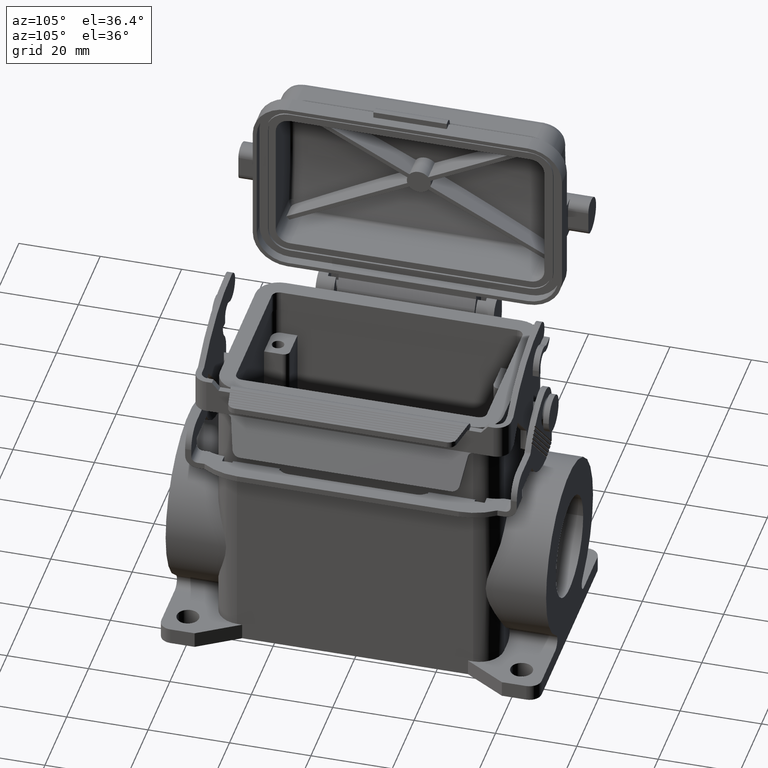
[diagram: clean part render]
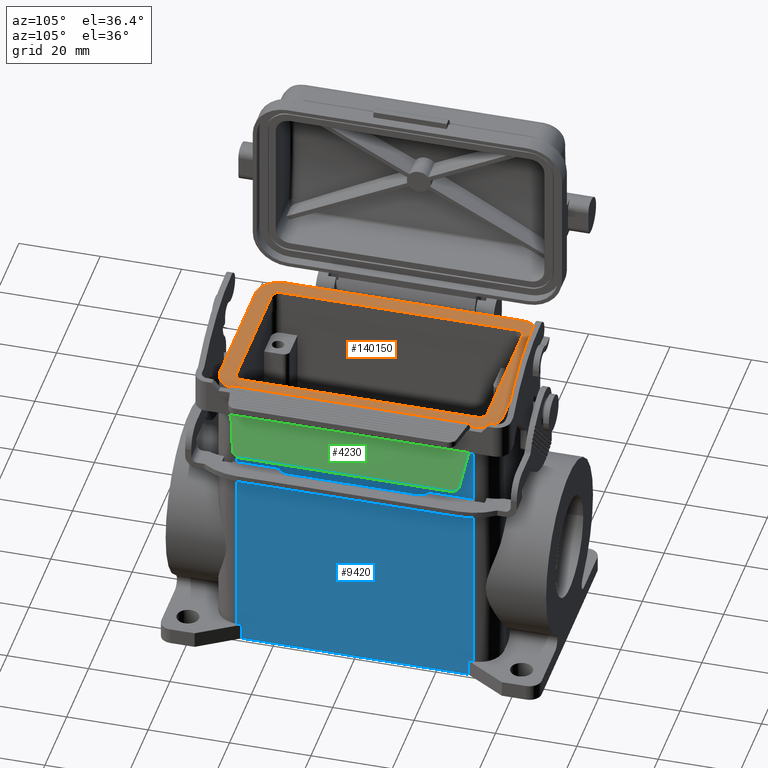
[diagram: same view with three faces highlighted in distinct colors, each labeled with its STEP entity id]
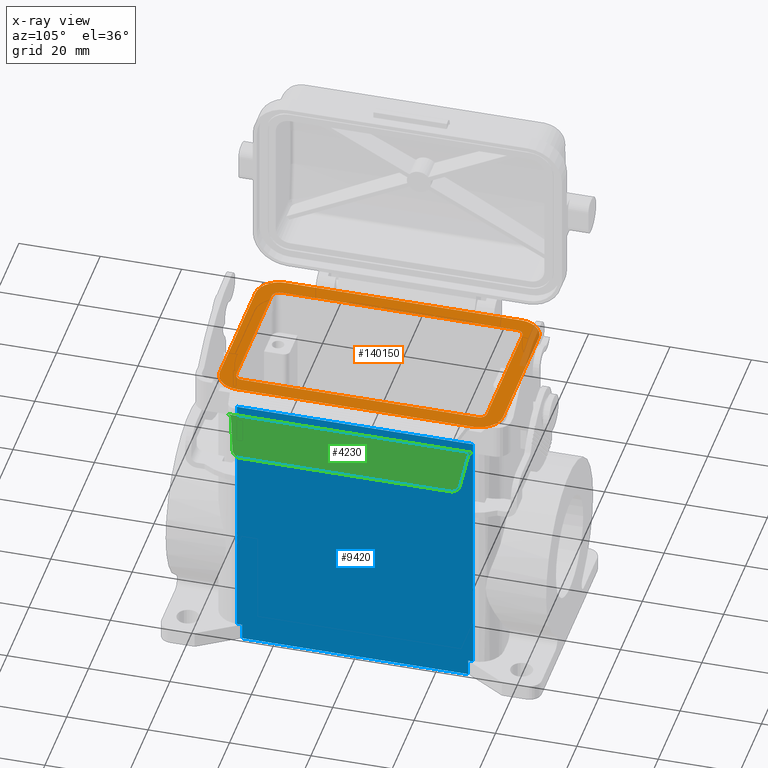
[diagram: x-ray of the same camera — body ghosted, the three highlighted faces saturated]
A machine part, auxiliary view with three faces highlighted in distinct colors.
The next image is the same camera in x-ray (body ghosted, the three faces saturated) — at least one of them is partly hidden behind the body in this view.
Their STEP definitions:

[orange] entity #140150 — the highlighted planar face has unit normal (0, 0, 1).
#24270=CARTESIAN_POINT('',(29.,22.05,9.));
#24280=VERTEX_POINT('',#24270);
#24310=CARTESIAN_POINT('',(29.,22.05,9.));
#24320=DIRECTION('',(-1.,0.,0.));
#24330=VECTOR('',#24320,58.);
#24340=LINE('',#24310,#24330);
#24350=CARTESIAN_POINT('',(-29.,22.05,9.));
#24360=VERTEX_POINT('',#24350);
#24370=EDGE_CURVE('',#24280,#24360,#24340,.T.);
#138540=CARTESIAN_POINT('',(34.8,16.25,9.));
#138550=VERTEX_POINT('',#138540);
#138580=CARTESIAN_POINT('',(29.,16.25,9.));
#138590=DIRECTION('',(0.,0.,1.));
#138600=DIRECTION('',(1.,0.,0.));
#138610=AXIS2_PLACEMENT_3D('',#138580,#138590,#138600);
#138620=CIRCLE('',#138610,5.8);
#138630=EDGE_CURVE('',#138550,#24280,#138620,.T.);
#138790=CARTESIAN_POINT('',(34.8,-16.25,9.));
#138800=VERTEX_POINT('',#138790);
#138830=CARTESIAN_POINT('',(34.8,-16.25,9.));
#138840=DIRECTION('',(0.,1.,0.));
#138850=VECTOR('',#138840,32.5);
#138860=LINE('',#138830,#138850);
#138870=EDGE_CURVE('',#138800,#138550,#138860,.T.);
#138940=CARTESIAN_POINT('',(-2.775558E-16,5.551115E-15,9.));
#138950=DIRECTION('',(0.,0.,1.));
#138960=DIRECTION('',(1.,0.,0.));
#138970=AXIS2_PLACEMENT_3D('',#138940,#138950,#138960);
#138980=PLANE('',#138970);
#138990=CARTESIAN_POINT('',(-29.,-16.25,9.));
#139000=DIRECTION('',(0.,0.,-1.));
#139010=DIRECTION('',(-1.,0.,0.));
#139020=AXIS2_PLACEMENT_3D('',#138990,#139000,#139010);
#139030=CIRCLE('',#139020,1.8);
#139040=CARTESIAN_POINT('',(-29.,-18.05,9.));
#139050=VERTEX_POINT('',#139040);
#139060=CARTESIAN_POINT('',(-30.8,-16.25,9.));
#139070=VERTEX_POINT('',#139060);
#139080=EDGE_CURVE('',#139050,#139070,#139030,.T.);
#139090=ORIENTED_EDGE('',*,*,#139080,.T.);
#139100=CARTESIAN_POINT('',(29.,-18.05,9.));
#139110=DIRECTION('',(-1.,0.,0.));
#139120=VECTOR('',#139110,58.);
#139130=LINE('',#139100,#139120);
#139140=CARTESIAN_POINT('',(29.,-18.05,9.));
#139150=VERTEX_POINT('',#139140);
#139160=EDGE_CURVE('',#139150,#139050,#139130,.T.);
#139170=ORIENTED_EDGE('',*,*,#139160,.T.);
#139180=CARTESIAN_POINT('',(29.,-16.25,9.));
#139190=DIRECTION('',(0.,0.,-1.));
#139200=DIRECTION('',(0.,-1.,0.));
#139210=AXIS2_PLACEMENT_3D('',#139180,#139190,#139200);
#139220=CIRCLE('',#139210,1.8);
#139230=CARTESIAN_POINT('',(30.8,-16.25,9.));
#139240=VERTEX_POINT('',#139230);
#139250=EDGE_CURVE('',#139240,#139150,#139220,.T.);
#139260=ORIENTED_EDGE('',*,*,#139250,.T.);
#139270=CARTESIAN_POINT('',(30.8,16.25,9.));
#139280=DIRECTION('',(0.,-1.,0.));
#139290=VECTOR('',#139280,32.5);
#139300=LINE('',#139270,#139290);
#139310=CARTESIAN_POINT('',(30.8,16.25,9.));
#139320=VERTEX_POINT('',#139310);
#139330=EDGE_CURVE('',#139320,#139240,#139300,.T.);
#139340=ORIENTED_EDGE('',*,*,#139330,.T.);
#139350=CARTESIAN_POINT('',(29.,16.25,9.));
#139360=DIRECTION('',(0.,0.,-1.));
#139370=DIRECTION('',(1.,0.,0.));
#139380=AXIS2_PLACEMENT_3D('',#139350,#139360,#139370);
#139390=CIRCLE('',#139380,1.8);
#139400=CARTESIAN_POINT('',(29.,18.05,9.));
#139410=VERTEX_POINT('',#139400);
#139420=EDGE_CURVE('',#139410,#139320,#139390,.T.);
#139430=ORIENTED_EDGE('',*,*,#139420,.T.);
#139440=CARTESIAN_POINT('',(-29.,18.05,9.));
#139450=DIRECTION('',(1.,0.,0.));
#139460=VECTOR('',#139450,58.);
#139470=LINE('',#139440,#139460);
#139480=CARTESIAN_POINT('',(-29.,18.05,9.));
#139490=VERTEX_POINT('',#139480);
#139500=EDGE_CURVE('',#139490,#139410,#139470,.T.);
#139510=ORIENTED_EDGE('',*,*,#139500,.T.);
#139520=CARTESIAN_POINT('',(-29.,16.25,9.));
#139530=DIRECTION('',(0.,0.,-1.));
#139540=DIRECTION('',(0.,1.,0.));
#139550=AXIS2_PLACEMENT_3D('',#139520,#139530,#139540);
#139560=CIRCLE('',#139550,1.8);
#139570=CARTESIAN_POINT('',(-30.8,16.25,9.));
#139580=VERTEX_POINT('',#139570);
#139590=EDGE_CURVE('',#139580,#139490,#139560,.T.);
#139600=ORIENTED_EDGE('',*,*,#139590,.T.);
#139610=CARTESIAN_POINT('',(-30.8,-16.25,9.));
#139620=DIRECTION('',(0.,1.,0.));
#139630=VECTOR('',#139620,32.5);
#139640=LINE('',#139610,#139630);
#139650=EDGE_CURVE('',#139070,#139580,#139640,.T.);
#139660=ORIENTED_EDGE('',*,*,#139650,.T.);
#139670=EDGE_LOOP('',(#139660,#139600,#139510,#139430,#139340,#139260,
#139170,#139090));
#139680=FACE_BOUND('',#139670,.T.);
#139690=ORIENTED_EDGE('',*,*,#24370,.T.);
#139700=ORIENTED_EDGE('',*,*,#138630,.T.);
#139710=ORIENTED_EDGE('',*,*,#138870,.T.);
#139720=CARTESIAN_POINT('',(29.,-16.25,9.));
#139730=DIRECTION('',(0.,0.,1.));
#139740=DIRECTION('',(0.,-1.,0.));
#139750=AXIS2_PLACEMENT_3D('',#139720,#139730,#139740);
#139760=CIRCLE('',#139750,5.8);
#139770=CARTESIAN_POINT('',(29.,-22.05,9.));
#139780=VERTEX_POINT('',#139770);
#139790=EDGE_CURVE('',#139780,#138800,#139760,.T.);
#139800=ORIENTED_EDGE('',*,*,#139790,.T.);
#139810=CARTESIAN_POINT('',(-29.,-22.05,9.));
#139820=DIRECTION('',(1.,0.,0.));
#139830=VECTOR('',#139820,58.);
#139840=LINE('',#139810,#139830);
#139850=CARTESIAN_POINT('',(-29.,-22.05,9.));
#139860=VERTEX_POINT('',#139850);
#139870=EDGE_CURVE('',#139860,#139780,#139840,.T.);
#139880=ORIENTED_EDGE('',*,*,#139870,.T.);
#139890=CARTESIAN_POINT('',(-29.,-16.25,9.));
#139900=DIRECTION('',(0.,0.,1.));
#139910=DIRECTION('',(-1.,0.,0.));
#139920=AXIS2_PLACEMENT_3D('',#139890,#139900,#139910);
#139930=CIRCLE('',#139920,5.8);
#139940=CARTESIAN_POINT('',(-34.8,-16.25,9.));
#139950=VERTEX_POINT('',#139940);
#139960=EDGE_CURVE('',#139950,#139860,#139930,.T.);
#139970=ORIENTED_EDGE('',*,*,#139960,.T.);
#139980=CARTESIAN_POINT('',(-34.8,16.25,9.));
#139990=DIRECTION('',(0.,-1.,0.));
#140000=VECTOR('',#139990,32.5);
#140010=LINE('',#139980,#140000);
#140020=CARTESIAN_POINT('',(-34.8,16.25,9.));
#140030=VERTEX_POINT('',#140020);
#140040=EDGE_CURVE('',#140030,#139950,#140010,.T.);
#140050=ORIENTED_EDGE('',*,*,#140040,.T.);
#140060=CARTESIAN_POINT('',(-29.,16.25,9.));
#140070=DIRECTION('',(0.,0.,1.));
#140080=DIRECTION('',(0.,1.,0.));
#140090=AXIS2_PLACEMENT_3D('',#140060,#140070,#140080);
#140100=CIRCLE('',#140090,5.8);
#140110=EDGE_CURVE('',#24360,#140030,#140100,.T.);
#140120=ORIENTED_EDGE('',*,*,#140110,.T.);
#140130=EDGE_LOOP('',(#140120,#140050,#139970,#139880,#139800,#139710,
#139700,#139690));
#140140=FACE_OUTER_BOUND('',#140130,.T.);
#140150=ADVANCED_FACE('',(#139680,#140140),#138980,.T.);

[blue] entity #9420 — the highlighted planar face has unit normal (1, 0, 0).
#6570=CARTESIAN_POINT('',(-27.75,-22.25,-64.));
#6580=VERTEX_POINT('',#6570);
#6610=CARTESIAN_POINT('',(27.75,-22.25,-64.));
#6620=DIRECTION('',(-1.,0.,0.));
#6630=VECTOR('',#6620,55.5);
#6640=LINE('',#6610,#6630);
#6650=CARTESIAN_POINT('',(27.75,-22.25,-64.));
#6660=VERTEX_POINT('',#6650);
#6670=EDGE_CURVE('',#6660,#6580,#6640,.T.);
#8800=CARTESIAN_POINT('',(27.75,-22.25,-64.));
#8810=DIRECTION('',(0.,-1.,0.));
#8820=DIRECTION('',(0.,0.,-1.));
#8830=AXIS2_PLACEMENT_3D('',#8800,#8810,#8820);
#8840=PLANE('',#8830);
#8850=CARTESIAN_POINT('',(-27.75,-22.25,-60.));
#8860=DIRECTION('',(-1.,0.,0.));
#8870=VECTOR('',#8860,1.25000000000001);
#8880=LINE('',#8850,#8870);
#8890=CARTESIAN_POINT('',(-27.75,-22.25,-60.));
#8900=VERTEX_POINT('',#8890);
#8910=CARTESIAN_POINT('',(-29.,-22.25,-60.));
#8920=VERTEX_POINT('',#8910);
#8930=EDGE_CURVE('',#8900,#8920,#8880,.T.);
#8940=ORIENTED_EDGE('',*,*,#8930,.F.);
#8950=CARTESIAN_POINT('',(-29.,-22.25,-60.));
#8960=DIRECTION('',(0.,0.,1.));
#8970=VECTOR('',#8960,65.);
#8980=LINE('',#8950,#8970);
#8990=CARTESIAN_POINT('',(-29.,-22.25,4.));
#9000=VERTEX_POINT('',#8990);
#9010=EDGE_CURVE('',#8920,#9000,#8980,.T.);
#9020=ORIENTED_EDGE('',*,*,#9010,.F.);
#9030=CARTESIAN_POINT('',(29.,-22.25,4.00000000000001));
#9040=DIRECTION('',(-1.,0.,0.));
#9050=VECTOR('',#9040,58.);
#9060=LINE('',#9030,#9050);
#9070=CARTESIAN_POINT('',(29.,-22.25,4.));
#9080=VERTEX_POINT('',#9070);
#9090=EDGE_CURVE('',#9080,#9000,#9060,.T.);
#9100=ORIENTED_EDGE('',*,*,#9090,.T.);
#9110=CARTESIAN_POINT('',(29.,-22.25,-60.));
#9120=DIRECTION('',(0.,0.,1.));
#9130=VECTOR('',#9120,65.);
#9140=LINE('',#9110,#9130);
#9150=CARTESIAN_POINT('',(29.,-22.25,-60.));
#9160=VERTEX_POINT('',#9150);
#9170=EDGE_CURVE('',#9160,#9080,#9140,.T.);
#9180=ORIENTED_EDGE('',*,*,#9170,.T.);
#9190=CARTESIAN_POINT('',(29.,-22.25,-60.));
#9200=DIRECTION('',(-1.,0.,0.));
#9210=VECTOR('',#9200,1.25000000000001);
#9220=LINE('',#9190,#9210);
#9230=CARTESIAN_POINT('',(27.75,-22.25,-60.));
#9240=VERTEX_POINT('',#9230);
#9250=EDGE_CURVE('',#9160,#9240,#9220,.T.);
#9260=ORIENTED_EDGE('',*,*,#9250,.F.);
#9270=CARTESIAN_POINT('',(27.75,-22.25,-64.));
#9280=DIRECTION('',(0.,0.,1.));
#9290=VECTOR('',#9280,4.00000000000001);
#9300=LINE('',#9270,#9290);
#9310=EDGE_CURVE('',#6660,#9240,#9300,.T.);
#9320=ORIENTED_EDGE('',*,*,#9310,.T.);
#9330=ORIENTED_EDGE('',*,*,#6670,.F.);
#9340=CARTESIAN_POINT('',(-27.75,-22.25,-64.));
#9350=DIRECTION('',(0.,0.,1.));
#9360=VECTOR('',#9350,4.00000000000001);
#9370=LINE('',#9340,#9360);
#9380=EDGE_CURVE('',#6580,#8900,#9370,.T.);
#9390=ORIENTED_EDGE('',*,*,#9380,.F.);
#9400=EDGE_LOOP('',(#9390,#9330,#9320,#9260,#9180,#9100,#9020,#8940));
#9410=FACE_OUTER_BOUND('',#9400,.T.);
#9420=ADVANCED_FACE('',(#9410),#8840,.T.);

[green] entity #4230 — the highlighted planar face has unit normal (0.9063, -0, 0.4226).
#3480=CARTESIAN_POINT('',(-30.75,-30.3809460939282,-2.25046229629066));
#3490=DIRECTION('',(-1.10990693043675E-16,-0.90630778703665,
0.422618261740699));
#3500=DIRECTION('',(-5.17558101501966E-17,-0.422618261740699,
-0.90630778703665));
#3510=AXIS2_PLACEMENT_3D('',#3480,#3490,#3500);
#3520=PLANE('',#3510);
#3530=CARTESIAN_POINT('',(-30.089099631173,-27.4663076581691,
3.99999999997834));
#3540=DIRECTION('',(-1.10990693043675E-16,-0.90630778703665,
0.422618261740699));
#3550=DIRECTION('',(5.09518016218984E-13,-0.422618261740699,
-0.90630778703665));
#3560=AXIS2_PLACEMENT_3D('',#3530,#3540,#3550);
#3570=ELLIPSE('',#3560,1.10337791896244,1.);
#3580=CARTESIAN_POINT('',(-29.1042918781608,-27.3853341830982,
4.17364817764523));
#3590=VERTEX_POINT('',#3580);
#3600=CARTESIAN_POINT('',(-30.0890996311731,-27.0000000000031,
5.00000000000228));
#3610=VERTEX_POINT('',#3600);
#3620=EDGE_CURVE('',#3590,#3610,#3570,.T.);
#3630=ORIENTED_EDGE('',*,*,#3620,.F.);
#3640=CARTESIAN_POINT('',(-39.25,-27.0000000000031,5.00000000000204));
#3650=DIRECTION('',(-1.,1.22464679914735E-16,-9.86076131526265E-32));
#3660=VECTOR('',#3650,1.);
#3670=LINE('',#3640,#3660);
#3680=CARTESIAN_POINT('',(30.0890996311815,-27.0000000000027,
5.00000000000234));
#3690=VERTEX_POINT('',#3680);
#3700=EDGE_CURVE('',#3690,#3610,#3670,.T.);
#3710=ORIENTED_EDGE('',*,*,#3700,.T.);
#3720=CARTESIAN_POINT('',(30.0890996311815,-27.4663076581465,
4.00000000002684));
#3730=DIRECTION('',(-1.10990693043675E-16,-0.90630778703665,
0.422618261740699));
#3740=DIRECTION('',(-5.17558101501965E-17,-0.422618261740699,
-0.90630778703665));
#3750=AXIS2_PLACEMENT_3D('',#3720,#3730,#3740);
#3760=ELLIPSE('',#3750,1.10337791896181,1.);
#3770=CARTESIAN_POINT('',(29.1042918781692,-27.3853341830756,
4.17364817769364));
#3780=VERTEX_POINT('',#3770);
#3790=EDGE_CURVE('',#3690,#3780,#3760,.T.);
#3800=ORIENTED_EDGE('',*,*,#3790,.F.);
#3810=CARTESIAN_POINT('',(27.6333405596582,-31.2753563557382,
-4.16853129251606));
#3820=DIRECTION('',(-0.157804207302349,-0.417323032802239,
-0.89495213193244));
#3830=VECTOR('',#3820,1.);
#3840=LINE('',#3810,#3830);
#3850=CARTESIAN_POINT('',(27.9212475925731,-30.5139683154882,
-2.53572937100686));
#3860=VERTEX_POINT('',#3850);
#3870=EDGE_CURVE('',#3780,#3860,#3840,.T.);
#3880=ORIENTED_EDGE('',*,*,#3870,.F.);
#3890=CARTESIAN_POINT('',(25.9406946507818,-30.3809460939282,
-2.25046229629076));
#3900=DIRECTION('',(-1.10990693043675E-16,-0.90630778703665,
0.422618261740699));
#3910=DIRECTION('',(1.,-1.44707374128265E-15,-2.84063329907317E-15));
#3920=AXIS2_PLACEMENT_3D('',#3890,#3900,#3910);
#3930=ELLIPSE('',#3920,2.00554539382355,2.);
#3940=CARTESIAN_POINT('',(25.9406946507818,-31.2261826174102,
-4.06307787036416));
#3950=VERTEX_POINT('',#3940);
#3960=EDGE_CURVE('',#3950,#3860,#3930,.T.);
#3970=ORIENTED_EDGE('',*,*,#3960,.T.);
#3980=CARTESIAN_POINT('',(-27.75,-31.2261826174102,-4.06307787036396));
#3990=DIRECTION('',(1.,-1.22464679914735E-16,0.));
#4000=VECTOR('',#3990,1.);
#4010=LINE('',#3980,#4000);
#4020=CARTESIAN_POINT('',(-25.9406946507818,-31.2261826174097,
-4.06307787036416));
#4030=VERTEX_POINT('',#4020);
#4040=EDGE_CURVE('',#4030,#3950,#4010,.T.);
#4050=ORIENTED_EDGE('',*,*,#4040,.T.);
#4060=CARTESIAN_POINT('',(-25.9406946507818,-30.3809460939282,
-2.25046229629076));
#4070=DIRECTION('',(-1.10990693043675E-16,-0.90630778703665,
0.422618261740699));
#4080=DIRECTION('',(1.,1.20214438145318E-15,2.84063329907317E-15));
#4090=AXIS2_PLACEMENT_3D('',#4060,#4070,#4080);
#4100=ELLIPSE('',#4090,2.00554539382355,2.);
#4110=CARTESIAN_POINT('',(-27.921247592573,-30.5139683154879,
-2.53572937100707));
#4120=VERTEX_POINT('',#4110);
#4130=EDGE_CURVE('',#4120,#4030,#4100,.T.);
#4140=ORIENTED_EDGE('',*,*,#4130,.T.);
#4150=CARTESIAN_POINT('',(-27.6333405596582,-31.2753563557382,
-4.16853129251606));
#4160=DIRECTION('',(-0.157804207302348,0.417323032802239,
0.89495213193244));
#4170=VECTOR('',#4160,1.);
#4180=LINE('',#4150,#4170);
#4190=EDGE_CURVE('',#4120,#3590,#4180,.T.);
#4200=ORIENTED_EDGE('',*,*,#4190,.F.);
#4210=EDGE_LOOP('',(#4200,#4140,#4050,#3970,#3880,#3800,#3710,#3630));
#4220=FACE_OUTER_BOUND('',#4210,.T.);
#4230=ADVANCED_FACE('',(#4220),#3520,.T.);